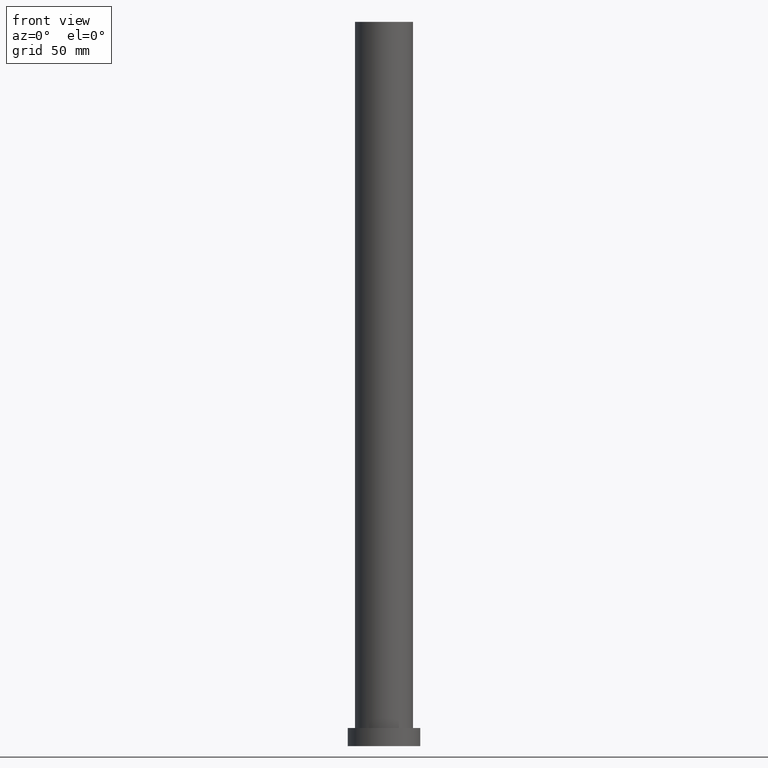
[diagram: clean part render]
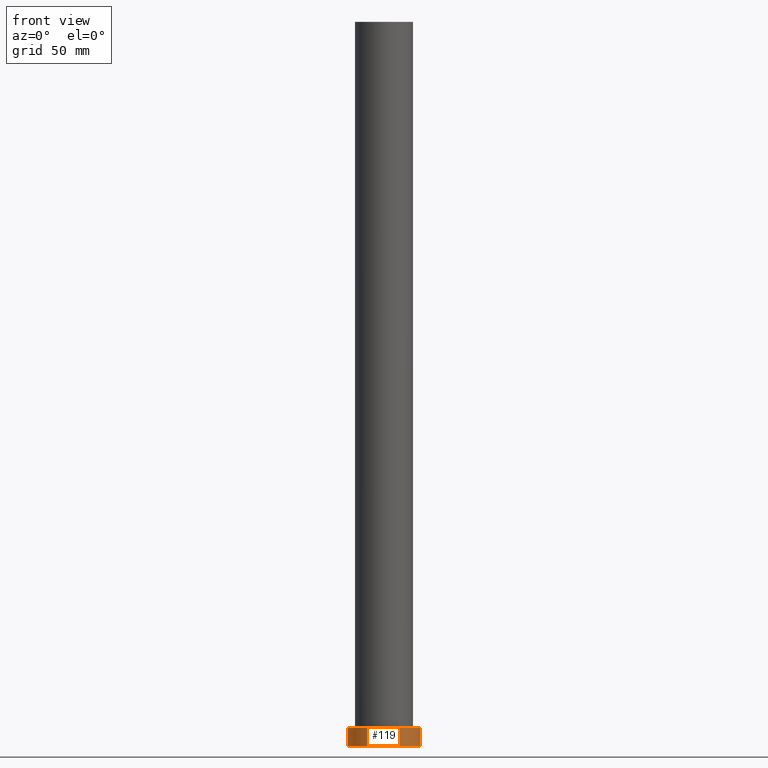
[diagram: same view with one face highlighted and labeled with its STEP entity id]
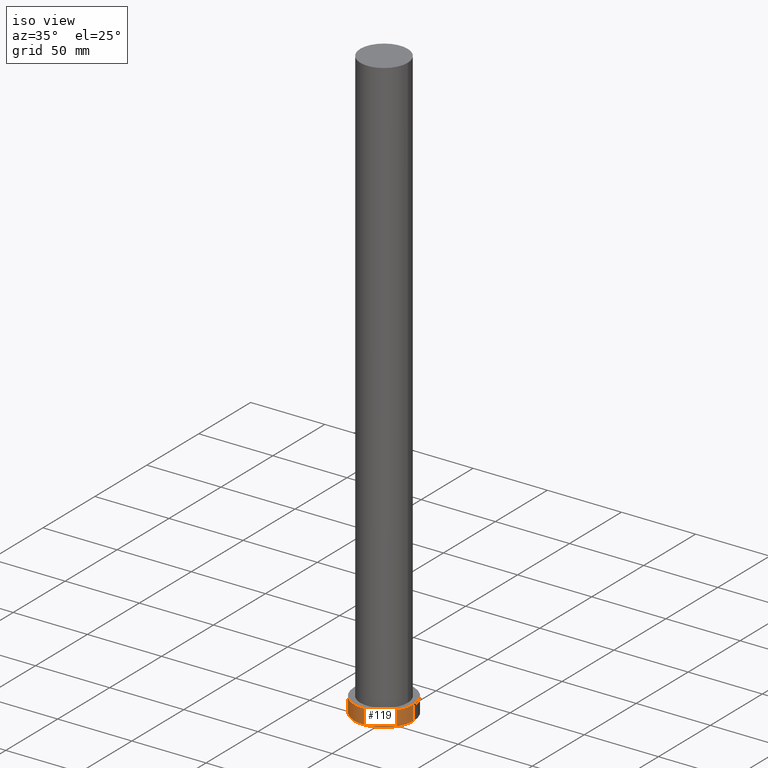
[diagram: same view with one face highlighted and labeled with its STEP entity id]
A machine part, front view. The second image highlights one B-rep face of the part: STEP entity #119.
A second angle (iso view) of the same face is appended — the face is thin or edge-on in the first view.
In plain terms, the highlighted cylindrical surface (edge-blend (fillet) strip) has radius 20 mm, axis along (-0, -0, -1).
Its self-contained STEP definition (entity closure, byte-faithful):
#4 = EDGE_CURVE ( 'NONE', #109, #231, #76, .T. ) ;
#5 = DIRECTION ( 'NONE',  ( -0.000000000000000000, -0.000000000000000000, -1.000000000000000000 ) ) ;
#12 = VERTEX_POINT ( 'NONE', #194 ) ;
#13 = VECTOR ( 'NONE', #250, 1000.000000000000000 ) ;
#17 = CARTESIAN_POINT ( 'NONE',  ( 0.000000000000000000, 0.000000000000000000, 0.000000000000000000 ) ) ;
#19 = AXIS2_PLACEMENT_3D ( 'NONE', #134, #214, #89 ) ;
#29 = AXIS2_PLACEMENT_3D ( 'NONE', #221, #203, #255 ) ;
#32 = VECTOR ( 'NONE', #5, 1000.000000000000000 ) ;
#41 = CARTESIAN_POINT ( 'NONE',  ( -20.00000000000000000, 0.000000000000000000, 0.000000000000000000 ) ) ;
#51 = EDGE_LOOP ( 'NONE', ( #254, #100, #88, #53 ) ) ;
#53 = ORIENTED_EDGE ( 'NONE', *, *, #105, .T. ) ;
#59 = CYLINDRICAL_SURFACE ( 'NONE', #19, 20.00000000000000000 ) ;
#71 = DIRECTION ( 'NONE',  ( 0.000000000000000000, 0.000000000000000000, 1.000000000000000000 ) ) ;
#76 = LINE ( 'NONE', #110, #13 ) ;
#88 = ORIENTED_EDGE ( 'NONE', *, *, #4, .T. ) ;
#89 = DIRECTION ( 'NONE',  ( -1.000000000000000000, 0.000000000000000000, 0.000000000000000000 ) ) ;
#91 = DIRECTION ( 'NONE',  ( 1.000000000000000000, 0.000000000000000000, 0.000000000000000000 ) ) ;
#100 = ORIENTED_EDGE ( 'NONE', *, *, #175, .F. ) ;
#105 = EDGE_CURVE ( 'NONE', #231, #12, #217, .T. ) ;
#109 = VERTEX_POINT ( 'NONE', #177 ) ;
#110 = CARTESIAN_POINT ( 'NONE',  ( -20.00000000000000000, 0.000000000000000000, 10.00000000000000000 ) ) ;
#119 = ADVANCED_FACE ( 'NONE', ( #253 ), #59, .T. ) ;
#134 = CARTESIAN_POINT ( 'NONE',  ( 0.000000000000000000, 0.000000000000000000, 10.00000000000000000 ) ) ;
#145 = AXIS2_PLACEMENT_3D ( 'NONE', #17, #71, #91 ) ;
#175 = EDGE_CURVE ( 'NONE', #109, #235, #218, .T. ) ;
#177 = CARTESIAN_POINT ( 'NONE',  ( -20.00000000000000000, 0.000000000000000000, 10.00000000000000000 ) ) ;
#186 = LINE ( 'NONE', #201, #32 ) ;
#194 = CARTESIAN_POINT ( 'NONE',  ( 20.00000000000000000, 2.449293598294706513E-15, 0.000000000000000000 ) ) ;
#201 = CARTESIAN_POINT ( 'NONE',  ( 20.00000000000000000, 2.449293598294706513E-15, 10.00000000000000000 ) ) ;
#203 = DIRECTION ( 'NONE',  ( 0.000000000000000000, 0.000000000000000000, 1.000000000000000000 ) ) ;
#214 = DIRECTION ( 'NONE',  ( -0.000000000000000000, -0.000000000000000000, -1.000000000000000000 ) ) ;
#215 = EDGE_CURVE ( 'NONE', #235, #12, #186, .T. ) ;
#217 = CIRCLE ( 'NONE', #145, 20.00000000000000000 ) ;
#218 = CIRCLE ( 'NONE', #29, 20.00000000000000000 ) ;
#220 = CARTESIAN_POINT ( 'NONE',  ( 20.00000000000000000, 2.449293598294706513E-15, 10.00000000000000000 ) ) ;
#221 = CARTESIAN_POINT ( 'NONE',  ( 0.000000000000000000, 0.000000000000000000, 10.00000000000000000 ) ) ;
#231 = VERTEX_POINT ( 'NONE', #41 ) ;
#235 = VERTEX_POINT ( 'NONE', #220 ) ;
#250 = DIRECTION ( 'NONE',  ( -0.000000000000000000, -0.000000000000000000, -1.000000000000000000 ) ) ;
#253 = FACE_OUTER_BOUND ( 'NONE', #51, .T. ) ;
#254 = ORIENTED_EDGE ( 'NONE', *, *, #215, .F. ) ;
#255 = DIRECTION ( 'NONE',  ( 1.000000000000000000, 0.000000000000000000, 0.000000000000000000 ) ) ;